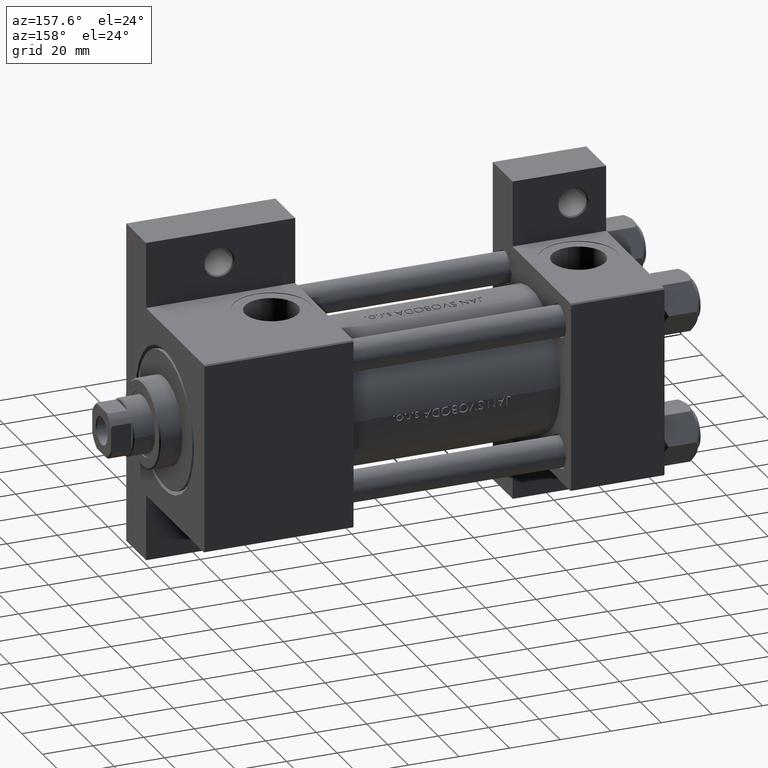
[diagram: clean part render]
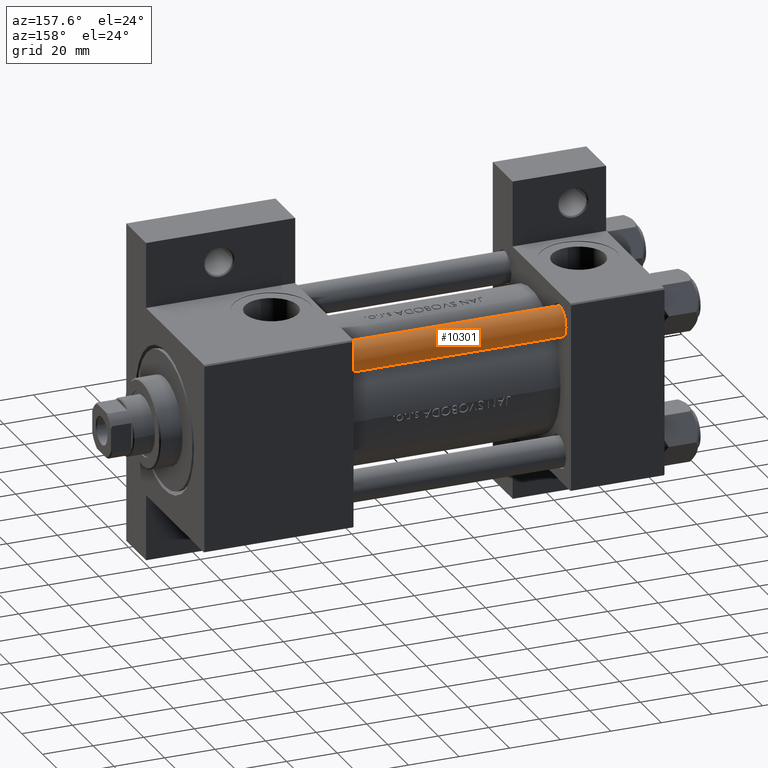
[diagram: same view with one face highlighted and labeled with its STEP entity id]
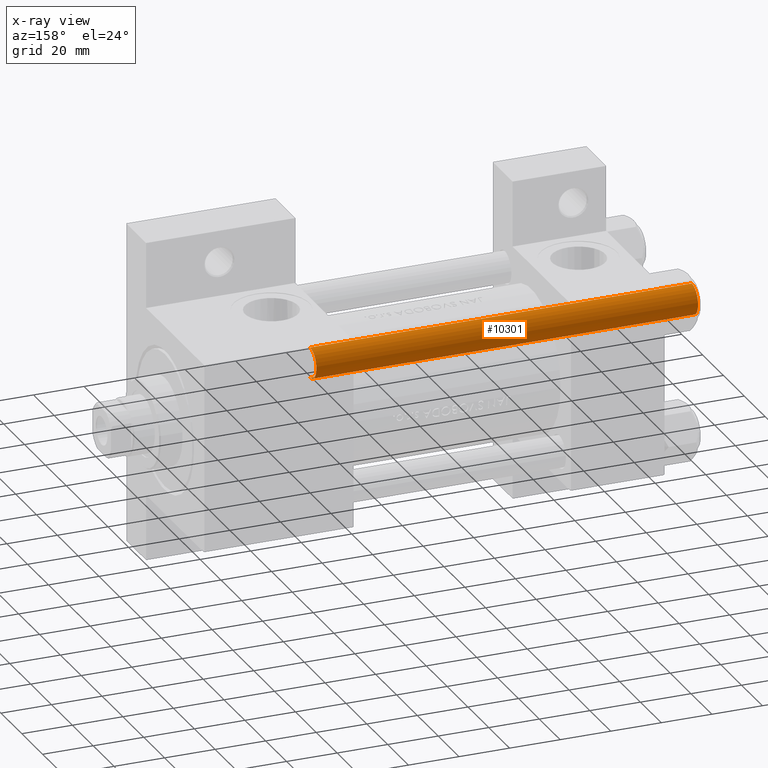
[diagram: x-ray of the same camera — body ghosted, the highlighted face saturated]
A machine part, auxiliary view. The second image highlights one B-rep face of the part: STEP entity #10301.
The next image is the same camera in x-ray: the body ghosted, the highlighted face saturated — about 0% of this face is hidden behind the body in this view.
In plain terms, the highlighted cylindrical surface (edge-blend (fillet) strip) has radius 6 mm, axis along (-1, -0, -0).
Its self-contained STEP definition (entity closure, byte-faithful):
#629 = DIRECTION ( 'NONE',  ( 1.000000000000000000, 0.000000000000000000, 0.000000000000000000 ) ) ;
#1587 = CARTESIAN_POINT ( 'NONE',  ( -6.000000000000000888, 0.000000000000000000, 152.0000000000000000 ) ) ;
#2172 = CIRCLE ( 'NONE', #29976, 6.000000000000000888 ) ;
#4661 = DIRECTION ( 'NONE',  ( -0.000000000000000000, -0.000000000000000000, -1.000000000000000000 ) ) ;
#4826 = LINE ( 'NONE', #1587, #20013 ) ;
#8695 = ORIENTED_EDGE ( 'NONE', *, *, #26469, .F. ) ;
#10301 = ADVANCED_FACE ( 'NONE', ( #11976 ), #45591, .T. ) ;
#11976 = FACE_OUTER_BOUND ( 'NONE', #18201, .T. ) ;
#12599 = CARTESIAN_POINT ( 'NONE',  ( 0.000000000000000000, 0.000000000000000000, 151.5000000000000000 ) ) ;
#14660 = CARTESIAN_POINT ( 'NONE',  ( 0.000000000000000000, 0.000000000000000000, 0.5000000000000281997 ) ) ;
#15108 = CARTESIAN_POINT ( 'NONE',  ( -6.000000000000000888, 0.000000000000000000, 0.5000000000000281997 ) ) ;
#18201 = EDGE_LOOP ( 'NONE', ( #45787, #35809, #36587, #8695 ) ) ;
#20013 = VECTOR ( 'NONE', #47157, 1000.000000000000000 ) ;
#22925 = DIRECTION ( 'NONE',  ( -1.000000000000000000, 0.000000000000000000, 0.000000000000000000 ) ) ;
#23407 = VECTOR ( 'NONE', #4661, 1000.000000000000000 ) ;
#26469 = EDGE_CURVE ( 'NONE', #46819, #48114, #4826, .T. ) ;
#26655 = DIRECTION ( 'NONE',  ( -0.000000000000000000, -0.000000000000000000, -1.000000000000000000 ) ) ;
#27293 = CARTESIAN_POINT ( 'NONE',  ( 6.000000000000000888, 7.347880794884120722E-16, 152.0000000000000000 ) ) ;
#28676 = CARTESIAN_POINT ( 'NONE',  ( -6.000000000000000888, 0.000000000000000000, 151.5000000000000000 ) ) ;
#29806 = DIRECTION ( 'NONE',  ( -0.000000000000000000, -0.000000000000000000, 1.000000000000000000 ) ) ;
#29976 = AXIS2_PLACEMENT_3D ( 'NONE', #12599, #31739, #629 ) ;
#31354 = CIRCLE ( 'NONE', #40953, 6.000000000000000888 ) ;
#31739 = DIRECTION ( 'NONE',  ( 0.000000000000000000, 0.000000000000000000, -1.000000000000000000 ) ) ;
#34313 = EDGE_CURVE ( 'NONE', #43537, #48114, #31354, .T. ) ;
#34528 = EDGE_CURVE ( 'NONE', #48076, #43537, #41760, .T. ) ;
#35809 = ORIENTED_EDGE ( 'NONE', *, *, #34528, .T. ) ;
#36587 = ORIENTED_EDGE ( 'NONE', *, *, #34313, .T. ) ;
#38000 = CARTESIAN_POINT ( 'NONE',  ( 6.000000000000000888, 7.347880794884120722E-16, 151.5000000000000000 ) ) ;
#38117 = CARTESIAN_POINT ( 'NONE',  ( 0.000000000000000000, 0.000000000000000000, 152.0000000000000000 ) ) ;
#40953 = AXIS2_PLACEMENT_3D ( 'NONE', #14660, #29806, #48027 ) ;
#41760 = LINE ( 'NONE', #27293, #23407 ) ;
#43537 = VERTEX_POINT ( 'NONE', #49020 ) ;
#44643 = EDGE_CURVE ( 'NONE', #46819, #48076, #2172, .T. ) ;
#45591 = CYLINDRICAL_SURFACE ( 'NONE', #46435, 6.000000000000000888 ) ;
#45787 = ORIENTED_EDGE ( 'NONE', *, *, #44643, .T. ) ;
#46435 = AXIS2_PLACEMENT_3D ( 'NONE', #38117, #26655, #22925 ) ;
#46819 = VERTEX_POINT ( 'NONE', #28676 ) ;
#47157 = DIRECTION ( 'NONE',  ( -0.000000000000000000, -0.000000000000000000, -1.000000000000000000 ) ) ;
#48027 = DIRECTION ( 'NONE',  ( 1.000000000000000000, 0.000000000000000000, 0.000000000000000000 ) ) ;
#48076 = VERTEX_POINT ( 'NONE', #38000 ) ;
#48114 = VERTEX_POINT ( 'NONE', #15108 ) ;
#49020 = CARTESIAN_POINT ( 'NONE',  ( 6.000000000000000888, 7.347880794884120722E-16, 0.5000000000000281997 ) ) ;